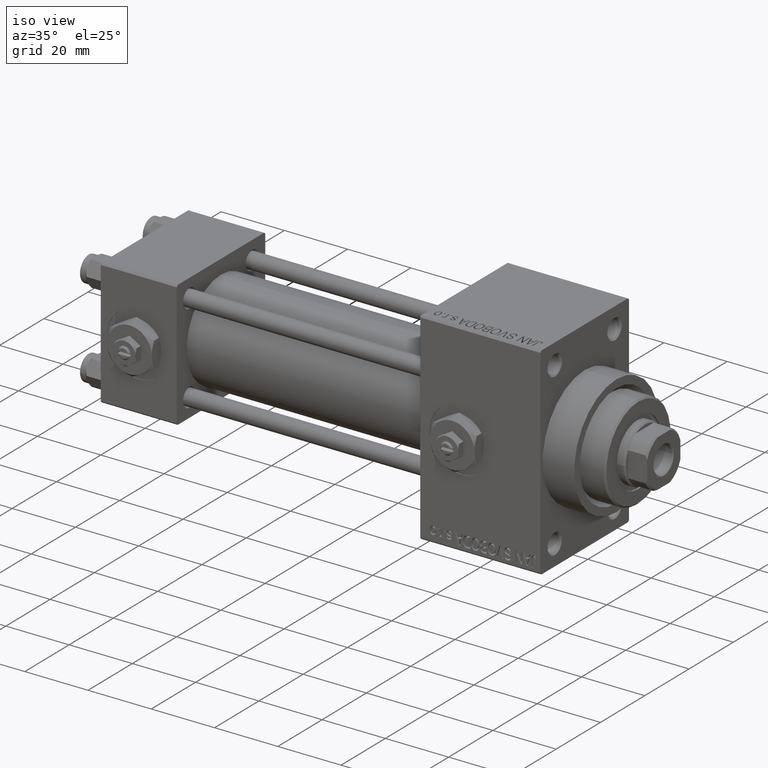
[diagram: clean part render]
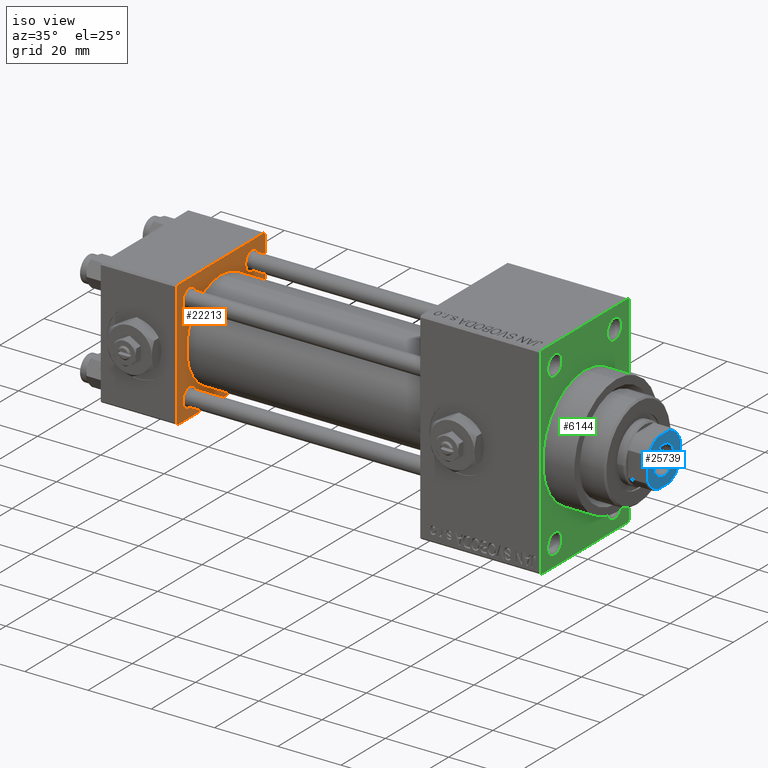
[diagram: same view with three faces highlighted in distinct colors, each labeled with its STEP entity id]
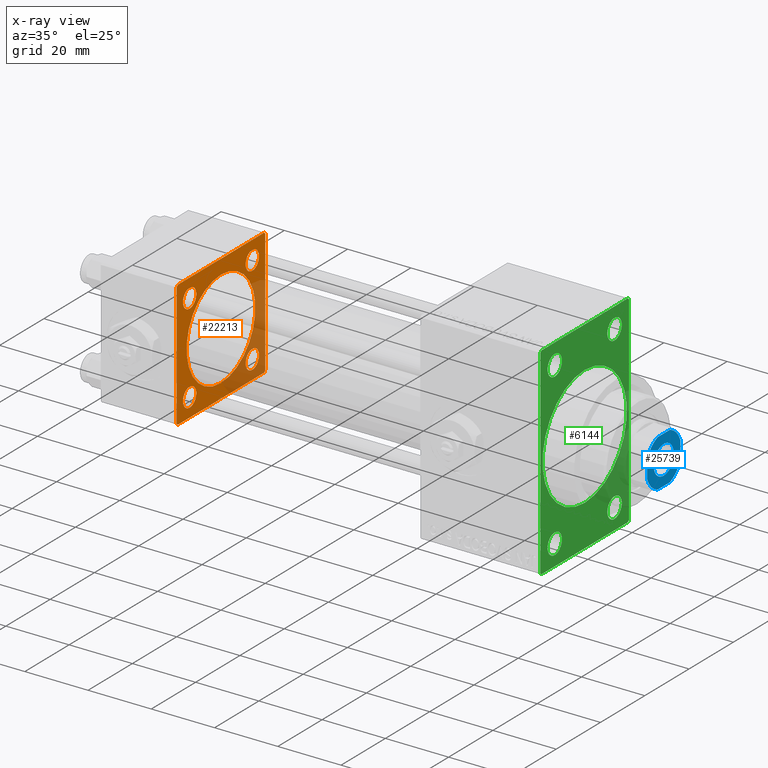
[diagram: x-ray of the same camera — body ghosted, the three highlighted faces saturated]
A machine part, iso view with three faces highlighted in distinct colors.
The next image is the same camera in x-ray (body ghosted, the three faces saturated) — at least one of them is partly hidden behind the body in this view.
Their STEP definitions:

[orange] entity #22213 — the highlighted planar face has unit normal (-1, 0, 0).
#208 = ORIENTED_EDGE ( 'NONE', *, *, #14749, .T. ) ;
#403 = ORIENTED_EDGE ( 'NONE', *, *, #12749, .T. ) ;
#414 = VECTOR ( 'NONE', #5601, 1000.000000000000000 ) ;
#1165 = VECTOR ( 'NONE', #41909, 1000.000000000000000 ) ;
#1203 = EDGE_CURVE ( 'NONE', #26590, #30342, #7630, .T. ) ;
#2475 = ORIENTED_EDGE ( 'NONE', *, *, #25808, .T. ) ;
#2793 = EDGE_LOOP ( 'NONE', ( #25057, #2811, #17392, #2475, #45039, #208, #7343, #4978 ) ) ;
#2811 = ORIENTED_EDGE ( 'NONE', *, *, #19152, .T. ) ;
#2814 = CIRCLE ( 'NONE', #4409, 2.999999999999990674 ) ;
#2873 = VERTEX_POINT ( 'NONE', #42936 ) ;
#2993 = EDGE_CURVE ( 'NONE', #2873, #21737, #48369, .T. ) ;
#3091 = CARTESIAN_POINT ( 'NONE',  ( 24.00000000000000000, -14.14999999999999503, 14.15000000000000391 ) ) ;
#3325 = ORIENTED_EDGE ( 'NONE', *, *, #26699, .T. ) ;
#3383 = DIRECTION ( 'NONE',  ( -0.000000000000000000, 0.000000000000000000, 1.000000000000000000 ) ) ;
#3393 = VECTOR ( 'NONE', #24546, 999.9999999999998863 ) ;
#3424 = CIRCLE ( 'NONE', #37420, 3.000000000000018208 ) ;
#3791 = ORIENTED_EDGE ( 'NONE', *, *, #5754, .F. ) ;
#3819 = ORIENTED_EDGE ( 'NONE', *, *, #4701, .T. ) ;
#4409 = AXIS2_PLACEMENT_3D ( 'NONE', #42950, #25063, #35245 ) ;
#4548 = DIRECTION ( 'NONE',  ( -1.000000000000000000, -0.000000000000000000, -0.000000000000000000 ) ) ;
#4642 = EDGE_CURVE ( 'NONE', #48187, #19458, #42603, .T. ) ;
#4701 = EDGE_CURVE ( 'NONE', #18779, #10367, #21981, .T. ) ;
#4978 = ORIENTED_EDGE ( 'NONE', *, *, #14148, .T. ) ;
#5227 = LINE ( 'NONE', #8212, #1165 ) ;
#5601 = DIRECTION ( 'NONE',  ( 0.000000000000000000, 0.000000000000000000, -1.000000000000000000 ) ) ;
#5754 = EDGE_CURVE ( 'NONE', #16055, #44828, #20434, .T. ) ;
#6781 = DIRECTION ( 'NONE',  ( 0.000000000000000000, 0.000000000000000000, 1.000000000000000000 ) ) ;
#6975 = CARTESIAN_POINT ( 'NONE',  ( 24.00000000000000000, 20.00000000000000000, 20.00000000000000000 ) ) ;
#7058 = VERTEX_POINT ( 'NONE', #15615 ) ;
#7172 = CARTESIAN_POINT ( 'NONE',  ( 24.00000000000000000, -19.50000000000000711, -20.00000000000000000 ) ) ;
#7343 = ORIENTED_EDGE ( 'NONE', *, *, #1203, .T. ) ;
#7463 = DIRECTION ( 'NONE',  ( 0.000000000000000000, -1.000000000000000000, -2.602085213965210149E-16 ) ) ;
#7550 = CARTESIAN_POINT ( 'NONE',  ( 24.00000000000000000, -14.14999999999999503, 17.15000000000002345 ) ) ;
#7630 = LINE ( 'NONE', #22712, #13991 ) ;
#7889 = EDGE_CURVE ( 'NONE', #10367, #18779, #2814, .T. ) ;
#8212 = CARTESIAN_POINT ( 'NONE',  ( 24.00000000000000000, 20.00000000000000000, -20.00000000000000711 ) ) ;
#8893 = EDGE_LOOP ( 'NONE', ( #25327, #3819 ) ) ;
#9316 = VECTOR ( 'NONE', #11062, 1000.000000000000114 ) ;
#9714 = CIRCLE ( 'NONE', #34997, 15.50000000000000000 ) ;
#9752 = CARTESIAN_POINT ( 'NONE',  ( 23.99999999999999289, -7.038826752868131828E-16, -15.50000000000000000 ) ) ;
#10367 = VERTEX_POINT ( 'NONE', #45521 ) ;
#11062 = DIRECTION ( 'NONE',  ( -0.000000000000000000, -0.7071067811865500152, -0.7071067811865451302 ) ) ;
#11253 = CARTESIAN_POINT ( 'NONE',  ( 24.00000000000000000, 20.00000000000000000, 19.49999999999999289 ) ) ;
#11545 = LINE ( 'NONE', #38018, #9316 ) ;
#12471 = VERTEX_POINT ( 'NONE', #15672 ) ;
#12545 = ORIENTED_EDGE ( 'NONE', *, *, #33748, .T. ) ;
#12654 = CARTESIAN_POINT ( 'NONE',  ( 24.00000000000000000, -14.14999999999999503, 11.14999999999998614 ) ) ;
#12749 = EDGE_CURVE ( 'NONE', #17936, #42137, #14769, .T. ) ;
#12753 = CARTESIAN_POINT ( 'NONE',  ( 24.00000000000000000, -14.14999999999999503, -14.15000000000000391 ) ) ;
#13602 = DIRECTION ( 'NONE',  ( 1.000000000000000000, 0.000000000000000000, 0.000000000000000000 ) ) ;
#13907 = DIRECTION ( 'NONE',  ( 0.000000000000000000, 0.000000000000000000, 1.000000000000000000 ) ) ;
#13991 = VECTOR ( 'NONE', #33377, 1000.000000000000000 ) ;
#14095 = AXIS2_PLACEMENT_3D ( 'NONE', #31543, #4548, #42710 ) ;
#14148 = EDGE_CURVE ( 'NONE', #30342, #31346, #26645, .T. ) ;
#14300 = DIRECTION ( 'NONE',  ( -1.000000000000000000, 0.000000000000000000, -0.000000000000000000 ) ) ;
#14393 = CIRCLE ( 'NONE', #24673, 2.999999999999990674 ) ;
#14749 = EDGE_CURVE ( 'NONE', #21737, #26590, #11545, .T. ) ;
#14769 = CIRCLE ( 'NONE', #21855, 3.000000000000018208 ) ;
#15188 = DIRECTION ( 'NONE',  ( -1.000000000000000000, -0.000000000000000000, -0.000000000000000000 ) ) ;
#15615 = CARTESIAN_POINT ( 'NONE',  ( 24.00000000000000000, 20.00000000000000000, -19.50000000000002132 ) ) ;
#15672 = CARTESIAN_POINT ( 'NONE',  ( 24.00000000000000000, 19.50000000000000711, -20.00000000000000711 ) ) ;
#15748 = CARTESIAN_POINT ( 'NONE',  ( 24.00000000000000000, -19.50000000000000711, -20.00000000000000000 ) ) ;
#15842 = CARTESIAN_POINT ( 'NONE',  ( 24.00000000000000000, 14.14999999999999858, -17.14999999999999147 ) ) ;
#16055 = VERTEX_POINT ( 'NONE', #9752 ) ;
#16935 = DIRECTION ( 'NONE',  ( -1.000000000000000000, -0.000000000000000000, -0.000000000000000000 ) ) ;
#17306 = DIRECTION ( 'NONE',  ( 0.000000000000000000, 0.000000000000000000, 1.000000000000000000 ) ) ;
#17392 = ORIENTED_EDGE ( 'NONE', *, *, #31541, .F. ) ;
#17936 = VERTEX_POINT ( 'NONE', #7550 ) ;
#18009 = FACE_OUTER_BOUND ( 'NONE', #2793, .T. ) ;
#18074 = AXIS2_PLACEMENT_3D ( 'NONE', #18136, #33244, #48396 ) ;
#18136 = CARTESIAN_POINT ( 'NONE',  ( 23.99999999999999289, -2.602085213965210642E-15, 0.000000000000000000 ) ) ;
#18190 = DIRECTION ( 'NONE',  ( -1.000000000000000000, -0.000000000000000000, -0.000000000000000000 ) ) ;
#18779 = VERTEX_POINT ( 'NONE', #37747 ) ;
#18814 = LINE ( 'NONE', #26243, #48507 ) ;
#19152 = EDGE_CURVE ( 'NONE', #12471, #7058, #18814, .T. ) ;
#19242 = CIRCLE ( 'NONE', #46161, 2.999999999999990674 ) ;
#19448 = DIRECTION ( 'NONE',  ( 0.000000000000000000, 0.7071067811865401342, -0.7071067811865549002 ) ) ;
#19458 = VERTEX_POINT ( 'NONE', #22465 ) ;
#19873 = EDGE_CURVE ( 'NONE', #42973, #31454, #19242, .T. ) ;
#20434 = CIRCLE ( 'NONE', #18074, 15.50000000000000000 ) ;
#20577 = LINE ( 'NONE', #43879, #3393 ) ;
#21035 = EDGE_LOOP ( 'NONE', ( #24649, #3791 ) ) ;
#21325 = CARTESIAN_POINT ( 'NONE',  ( 24.00000000000000000, 14.14999999999999858, -14.15000000000000036 ) ) ;
#21737 = VERTEX_POINT ( 'NONE', #47573 ) ;
#21855 = AXIS2_PLACEMENT_3D ( 'NONE', #31453, #35165, #23028 ) ;
#21981 = CIRCLE ( 'NONE', #28331, 2.999999999999990674 ) ;
#22071 = ORIENTED_EDGE ( 'NONE', *, *, #4642, .T. ) ;
#22213 = ADVANCED_FACE ( 'NONE', ( #45022, #29634, #33349, #36819, #48999, #18009 ), #41289, .F. ) ;
#22465 = CARTESIAN_POINT ( 'NONE',  ( 24.00000000000000000, -14.14999999999999503, -17.15000000000002345 ) ) ;
#22712 = CARTESIAN_POINT ( 'NONE',  ( 24.00000000000000000, -20.00000000000000355, 19.99999999999998934 ) ) ;
#23014 = CARTESIAN_POINT ( 'NONE',  ( 24.00000000000000000, -14.14999999999999503, -11.14999999999998614 ) ) ;
#23028 = DIRECTION ( 'NONE',  ( 0.000000000000000000, 0.000000000000000000, 1.000000000000000000 ) ) ;
#23459 = AXIS2_PLACEMENT_3D ( 'NONE', #3091, #18190, #33297 ) ;
#23698 = EDGE_CURVE ( 'NONE', #31454, #42973, #14393, .T. ) ;
#23853 = ORIENTED_EDGE ( 'NONE', *, *, #19873, .T. ) ;
#24546 = DIRECTION ( 'NONE',  ( 0.000000000000000000, -0.7071067811865425767, 0.7071067811865525687 ) ) ;
#24649 = ORIENTED_EDGE ( 'NONE', *, *, #24954, .F. ) ;
#24673 = AXIS2_PLACEMENT_3D ( 'NONE', #40713, #15188, #6781 ) ;
#24701 = VERTEX_POINT ( 'NONE', #11253 ) ;
#24954 = EDGE_CURVE ( 'NONE', #44828, #16055, #9714, .T. ) ;
#25057 = ORIENTED_EDGE ( 'NONE', *, *, #29671, .F. ) ;
#25063 = DIRECTION ( 'NONE',  ( -1.000000000000000000, -0.000000000000000000, -0.000000000000000000 ) ) ;
#25327 = ORIENTED_EDGE ( 'NONE', *, *, #7889, .T. ) ;
#25555 = EDGE_LOOP ( 'NONE', ( #12545, #403 ) ) ;
#25808 = EDGE_CURVE ( 'NONE', #24701, #2873, #20577, .T. ) ;
#26243 = CARTESIAN_POINT ( 'NONE',  ( 24.00000000000000000, 20.00000000000000000, -19.50000000000002132 ) ) ;
#26590 = VERTEX_POINT ( 'NONE', #42232 ) ;
#26645 = LINE ( 'NONE', #15748, #32966 ) ;
#26699 = EDGE_CURVE ( 'NONE', #19458, #48187, #3424, .T. ) ;
#28118 = CARTESIAN_POINT ( 'NONE',  ( 24.00000000000000000, 20.00000000000000000, 20.00000000000000000 ) ) ;
#28331 = AXIS2_PLACEMENT_3D ( 'NONE', #47410, #40187, #43200 ) ;
#29068 = VECTOR ( 'NONE', #7463, 1000.000000000000000 ) ;
#29634 = FACE_BOUND ( 'NONE', #35367, .T. ) ;
#29671 = EDGE_CURVE ( 'NONE', #12471, #31346, #5227, .T. ) ;
#29935 = CARTESIAN_POINT ( 'NONE',  ( 23.99999999999999289, -2.602085213965210642E-15, 15.50000000000000000 ) ) ;
#30342 = VERTEX_POINT ( 'NONE', #41706 ) ;
#31346 = VERTEX_POINT ( 'NONE', #7172 ) ;
#31453 = CARTESIAN_POINT ( 'NONE',  ( 24.00000000000000000, -14.14999999999999503, 14.15000000000000391 ) ) ;
#31454 = VERTEX_POINT ( 'NONE', #46051 ) ;
#31541 = EDGE_CURVE ( 'NONE', #24701, #7058, #32810, .T. ) ;
#31543 = CARTESIAN_POINT ( 'NONE',  ( 24.00000000000000000, -14.14999999999999503, -14.15000000000000391 ) ) ;
#32810 = LINE ( 'NONE', #28118, #414 ) ;
#32966 = VECTOR ( 'NONE', #19448, 1000.000000000000000 ) ;
#33244 = DIRECTION ( 'NONE',  ( 1.000000000000000000, 0.000000000000000000, 0.000000000000000000 ) ) ;
#33297 = DIRECTION ( 'NONE',  ( 0.000000000000000000, 0.000000000000000000, 1.000000000000000000 ) ) ;
#33349 = FACE_BOUND ( 'NONE', #25555, .T. ) ;
#33377 = DIRECTION ( 'NONE',  ( 0.000000000000000000, 8.673617379884036705E-17, -1.000000000000000000 ) ) ;
#33465 = ORIENTED_EDGE ( 'NONE', *, *, #23698, .T. ) ;
#33748 = EDGE_CURVE ( 'NONE', #42137, #17936, #40055, .T. ) ;
#33930 = DIRECTION ( 'NONE',  ( -0.000000000000000000, 0.7071067811865524577, 0.7071067811865426878 ) ) ;
#34997 = AXIS2_PLACEMENT_3D ( 'NONE', #36132, #13602, #17306 ) ;
#35165 = DIRECTION ( 'NONE',  ( -1.000000000000000000, -0.000000000000000000, -0.000000000000000000 ) ) ;
#35245 = DIRECTION ( 'NONE',  ( 0.000000000000000000, 0.000000000000000000, 1.000000000000000000 ) ) ;
#35367 = EDGE_LOOP ( 'NONE', ( #23853, #33465 ) ) ;
#36132 = CARTESIAN_POINT ( 'NONE',  ( 23.99999999999999289, -2.602085213965210642E-15, 0.000000000000000000 ) ) ;
#36433 = DIRECTION ( 'NONE',  ( -1.000000000000000000, -0.000000000000000000, -0.000000000000000000 ) ) ;
#36819 = FACE_BOUND ( 'NONE', #8893, .T. ) ;
#37299 = CARTESIAN_POINT ( 'NONE',  ( 24.00000000000000000, 0.000000000000000000, 0.000000000000000000 ) ) ;
#37420 = AXIS2_PLACEMENT_3D ( 'NONE', #12753, #16935, #42739 ) ;
#37747 = CARTESIAN_POINT ( 'NONE',  ( 24.00000000000000000, 14.14999999999999858, 17.14999999999999147 ) ) ;
#38018 = CARTESIAN_POINT ( 'NONE',  ( 24.00000000000000000, -20.00000000000000355, 19.49999999999998224 ) ) ;
#38298 = AXIS2_PLACEMENT_3D ( 'NONE', #37299, #14300, #3383 ) ;
#39565 = EDGE_LOOP ( 'NONE', ( #3325, #22071 ) ) ;
#40055 = CIRCLE ( 'NONE', #23459, 3.000000000000018208 ) ;
#40187 = DIRECTION ( 'NONE',  ( -1.000000000000000000, -0.000000000000000000, -0.000000000000000000 ) ) ;
#40713 = CARTESIAN_POINT ( 'NONE',  ( 24.00000000000000000, 14.14999999999999858, -14.15000000000000036 ) ) ;
#41289 = PLANE ( 'NONE',  #38298 ) ;
#41706 = CARTESIAN_POINT ( 'NONE',  ( 24.00000000000000000, -20.00000000000000000, -19.49999999999999645 ) ) ;
#41909 = DIRECTION ( 'NONE',  ( 0.000000000000000000, -1.000000000000000000, 1.734723475976807094E-16 ) ) ;
#42137 = VERTEX_POINT ( 'NONE', #12654 ) ;
#42232 = CARTESIAN_POINT ( 'NONE',  ( 24.00000000000000000, -20.00000000000000355, 19.49999999999998224 ) ) ;
#42603 = CIRCLE ( 'NONE', #14095, 3.000000000000018208 ) ;
#42710 = DIRECTION ( 'NONE',  ( 0.000000000000000000, 0.000000000000000000, 1.000000000000000000 ) ) ;
#42739 = DIRECTION ( 'NONE',  ( 0.000000000000000000, 0.000000000000000000, 1.000000000000000000 ) ) ;
#42936 = CARTESIAN_POINT ( 'NONE',  ( 24.00000000000000000, 19.50000000000000000, 20.00000000000000000 ) ) ;
#42950 = CARTESIAN_POINT ( 'NONE',  ( 24.00000000000000000, 14.14999999999999858, 14.15000000000000036 ) ) ;
#42973 = VERTEX_POINT ( 'NONE', #15842 ) ;
#43200 = DIRECTION ( 'NONE',  ( 0.000000000000000000, 0.000000000000000000, 1.000000000000000000 ) ) ;
#43879 = CARTESIAN_POINT ( 'NONE',  ( 24.00000000000000000, 19.50000000000000000, 20.00000000000000000 ) ) ;
#44828 = VERTEX_POINT ( 'NONE', #29935 ) ;
#45022 = FACE_BOUND ( 'NONE', #39565, .T. ) ;
#45039 = ORIENTED_EDGE ( 'NONE', *, *, #2993, .T. ) ;
#45521 = CARTESIAN_POINT ( 'NONE',  ( 24.00000000000000000, 14.14999999999999858, 11.15000000000001279 ) ) ;
#46051 = CARTESIAN_POINT ( 'NONE',  ( 24.00000000000000000, 14.14999999999999858, -11.15000000000001279 ) ) ;
#46161 = AXIS2_PLACEMENT_3D ( 'NONE', #21325, #36433, #13907 ) ;
#47410 = CARTESIAN_POINT ( 'NONE',  ( 24.00000000000000000, 14.14999999999999858, 14.15000000000000036 ) ) ;
#47573 = CARTESIAN_POINT ( 'NONE',  ( 24.00000000000000000, -19.49999999999999289, 19.99999999999998934 ) ) ;
#48187 = VERTEX_POINT ( 'NONE', #23014 ) ;
#48369 = LINE ( 'NONE', #6975, #29068 ) ;
#48396 = DIRECTION ( 'NONE',  ( 0.000000000000000000, 0.000000000000000000, 1.000000000000000000 ) ) ;
#48507 = VECTOR ( 'NONE', #33930, 1000.000000000000000 ) ;
#48999 = FACE_BOUND ( 'NONE', #21035, .T. ) ;

[blue] entity #25739 — the highlighted planar face has unit normal (1, 0, 0).
#239 = AXIS2_PLACEMENT_3D ( 'NONE', #10549, #14496, #25873 ) ;
#427 = CARTESIAN_POINT ( 'NONE',  ( 0.000000000000000000, 0.000000000000000000, 140.0000000000000000 ) ) ;
#841 = CARTESIAN_POINT ( 'NONE',  ( 0.000000000000000000, 0.000000000000000000, 140.0000000000000000 ) ) ;
#1003 = CARTESIAN_POINT ( 'NONE',  ( 0.000000000000000000, 0.000000000000000000, 140.0000000000000000 ) ) ;
#1164 = DIRECTION ( 'NONE',  ( -0.000000000000000000, 0.000000000000000000, 1.000000000000000000 ) ) ;
#1196 = AXIS2_PLACEMENT_3D ( 'NONE', #1003, #4731, #45628 ) ;
#1376 = CARTESIAN_POINT ( 'NONE',  ( 7.500000000000000888, -2.783882181415012980, 140.0000000000000000 ) ) ;
#2940 = CARTESIAN_POINT ( 'NONE',  ( -7.500000000000000000, 7.499999999999998224, 140.0000000000000000 ) ) ;
#3623 = EDGE_LOOP ( 'NONE', ( #36331, #32023 ) ) ;
#4731 = DIRECTION ( 'NONE',  ( 0.000000000000000000, -0.000000000000000000, -1.000000000000000000 ) ) ;
#4982 = CIRCLE ( 'NONE', #24729, 8.000000000000030198 ) ;
#5207 = VERTEX_POINT ( 'NONE', #47044 ) ;
#5527 = VERTEX_POINT ( 'NONE', #8530 ) ;
#5917 = LINE ( 'NONE', #32170, #37699 ) ;
#6085 = CIRCLE ( 'NONE', #39310, 8.000000000000001776 ) ;
#6377 = ORIENTED_EDGE ( 'NONE', *, *, #38613, .T. ) ;
#6412 = EDGE_CURVE ( 'NONE', #18614, #17088, #7152, .T. ) ;
#7152 = LINE ( 'NONE', #2940, #27646 ) ;
#7644 = CARTESIAN_POINT ( 'NONE',  ( 7.500000000000000000, 7.500000000000000000, 140.0000000000000000 ) ) ;
#7994 = VECTOR ( 'NONE', #41455, 1000.000000000000000 ) ;
#8530 = CARTESIAN_POINT ( 'NONE',  ( -7.499999999999999112, 2.783882181415099577, 140.0000000000000000 ) ) ;
#9588 = VERTEX_POINT ( 'NONE', #43457 ) ;
#9981 = CIRCLE ( 'NONE', #32123, 4.549999999999998934 ) ;
#10549 = CARTESIAN_POINT ( 'NONE',  ( 0.000000000000000000, 0.000000000000000000, 140.0000000000000000 ) ) ;
#11357 = EDGE_CURVE ( 'NONE', #45139, #5207, #9981, .T. ) ;
#11480 = LINE ( 'NONE', #38191, #7994 ) ;
#11596 = DIRECTION ( 'NONE',  ( 1.000000000000000000, 0.000000000000000000, 0.000000000000000000 ) ) ;
#12975 = CARTESIAN_POINT ( 'NONE',  ( 0.000000000000000000, 0.000000000000000000, 140.0000000000000000 ) ) ;
#13226 = DIRECTION ( 'NONE',  ( -0.000000000000000000, 0.000000000000000000, 1.000000000000000000 ) ) ;
#13778 = DIRECTION ( 'NONE',  ( 1.000000000000000000, 0.000000000000000000, 0.000000000000000000 ) ) ;
#14208 = CARTESIAN_POINT ( 'NONE',  ( -7.499999999999997335, -2.783882181415101353, 140.0000000000000000 ) ) ;
#14496 = DIRECTION ( 'NONE',  ( -0.000000000000000000, 0.000000000000000000, 1.000000000000000000 ) ) ;
#14576 = EDGE_CURVE ( 'NONE', #15735, #40541, #45800, .T. ) ;
#14812 = CARTESIAN_POINT ( 'NONE',  ( -2.783882181415096024, -7.500000000000000000, 140.0000000000000000 ) ) ;
#15735 = VERTEX_POINT ( 'NONE', #1376 ) ;
#15949 = ORIENTED_EDGE ( 'NONE', *, *, #31803, .T. ) ;
#17088 = VERTEX_POINT ( 'NONE', #26754 ) ;
#18031 = CARTESIAN_POINT ( 'NONE',  ( 0.000000000000000000, 0.000000000000000000, 140.0000000000000000 ) ) ;
#18614 = VERTEX_POINT ( 'NONE', #27452 ) ;
#19373 = EDGE_CURVE ( 'NONE', #17088, #5527, #4982, .T. ) ;
#19560 = VECTOR ( 'NONE', #37581, 1000.000000000000000 ) ;
#21912 = FACE_OUTER_BOUND ( 'NONE', #32287, .T. ) ;
#23316 = CIRCLE ( 'NONE', #1196, 4.549999999999998934 ) ;
#23620 = DIRECTION ( 'NONE',  ( 1.000000000000000000, 0.000000000000000000, 0.000000000000000000 ) ) ;
#23957 = ORIENTED_EDGE ( 'NONE', *, *, #47767, .T. ) ;
#24729 = AXIS2_PLACEMENT_3D ( 'NONE', #18031, #29912, #29181 ) ;
#25739 = ADVANCED_FACE ( 'NONE', ( #29353, #21912 ), #44482, .T. ) ;
#25873 = DIRECTION ( 'NONE',  ( 1.000000000000000000, 0.000000000000000000, 0.000000000000000000 ) ) ;
#26754 = CARTESIAN_POINT ( 'NONE',  ( -2.783882181415099133, 7.499999999999999112, 140.0000000000000000 ) ) ;
#26898 = VERTEX_POINT ( 'NONE', #14208 ) ;
#27310 = EDGE_CURVE ( 'NONE', #40541, #18614, #27956, .T. ) ;
#27452 = CARTESIAN_POINT ( 'NONE',  ( 2.783882181415016532, 7.499999999999999112, 140.0000000000000000 ) ) ;
#27646 = VECTOR ( 'NONE', #33882, 1000.000000000000000 ) ;
#27956 = CIRCLE ( 'NONE', #33477, 8.000000000000001776 ) ;
#28139 = AXIS2_PLACEMENT_3D ( 'NONE', #12975, #13226, #28312 ) ;
#28143 = DIRECTION ( 'NONE',  ( 0.000000000000000000, -0.000000000000000000, -1.000000000000000000 ) ) ;
#28312 = DIRECTION ( 'NONE',  ( 1.000000000000000000, 0.000000000000000000, 0.000000000000000000 ) ) ;
#29181 = DIRECTION ( 'NONE',  ( 1.000000000000000000, 0.000000000000000000, 0.000000000000000000 ) ) ;
#29353 = FACE_BOUND ( 'NONE', #3623, .T. ) ;
#29879 = CARTESIAN_POINT ( 'NONE',  ( -4.549999999999998934, 5.572142936120455355E-16, 140.0000000000000000 ) ) ;
#29912 = DIRECTION ( 'NONE',  ( -0.000000000000000000, 0.000000000000000000, 1.000000000000000000 ) ) ;
#31125 = EDGE_CURVE ( 'NONE', #5207, #45139, #23316, .T. ) ;
#31803 = EDGE_CURVE ( 'NONE', #26898, #35800, #34465, .T. ) ;
#32023 = ORIENTED_EDGE ( 'NONE', *, *, #11357, .T. ) ;
#32123 = AXIS2_PLACEMENT_3D ( 'NONE', #40020, #28143, #13778 ) ;
#32170 = CARTESIAN_POINT ( 'NONE',  ( -7.500000000000000000, 7.499999999999998224, 140.0000000000000000 ) ) ;
#32287 = EDGE_LOOP ( 'NONE', ( #42595, #42648, #44821, #39253, #6377, #15949, #23957, #37614 ) ) ;
#33477 = AXIS2_PLACEMENT_3D ( 'NONE', #427, #1164, #11596 ) ;
#33882 = DIRECTION ( 'NONE',  ( -1.000000000000000000, -1.156482317317871478E-16, -0.000000000000000000 ) ) ;
#34465 = CIRCLE ( 'NONE', #28139, 8.000000000000030198 ) ;
#35800 = VERTEX_POINT ( 'NONE', #14812 ) ;
#36331 = ORIENTED_EDGE ( 'NONE', *, *, #31125, .T. ) ;
#37581 = DIRECTION ( 'NONE',  ( -1.156482317317871478E-16, 1.000000000000000000, -0.000000000000000000 ) ) ;
#37614 = ORIENTED_EDGE ( 'NONE', *, *, #37944, .T. ) ;
#37699 = VECTOR ( 'NONE', #46823, 1000.000000000000000 ) ;
#37944 = EDGE_CURVE ( 'NONE', #9588, #15735, #6085, .T. ) ;
#38191 = CARTESIAN_POINT ( 'NONE',  ( -7.499999999999998224, -7.500000000000000000, 140.0000000000000000 ) ) ;
#38240 = CARTESIAN_POINT ( 'NONE',  ( 7.500000000000000888, 2.783882181415014312, 140.0000000000000000 ) ) ;
#38478 = DIRECTION ( 'NONE',  ( -0.000000000000000000, 0.000000000000000000, 1.000000000000000000 ) ) ;
#38613 = EDGE_CURVE ( 'NONE', #5527, #26898, #5917, .T. ) ;
#39253 = ORIENTED_EDGE ( 'NONE', *, *, #19373, .T. ) ;
#39310 = AXIS2_PLACEMENT_3D ( 'NONE', #841, #38478, #23620 ) ;
#40020 = CARTESIAN_POINT ( 'NONE',  ( 0.000000000000000000, 0.000000000000000000, 140.0000000000000000 ) ) ;
#40541 = VERTEX_POINT ( 'NONE', #38240 ) ;
#41455 = DIRECTION ( 'NONE',  ( 1.000000000000000000, 0.000000000000000000, 0.000000000000000000 ) ) ;
#42595 = ORIENTED_EDGE ( 'NONE', *, *, #14576, .T. ) ;
#42648 = ORIENTED_EDGE ( 'NONE', *, *, #27310, .T. ) ;
#43457 = CARTESIAN_POINT ( 'NONE',  ( 2.783882181415015644, -7.500000000000000000, 140.0000000000000000 ) ) ;
#44482 = PLANE ( 'NONE',  #239 ) ;
#44821 = ORIENTED_EDGE ( 'NONE', *, *, #6412, .T. ) ;
#45139 = VERTEX_POINT ( 'NONE', #29879 ) ;
#45628 = DIRECTION ( 'NONE',  ( 1.000000000000000000, 0.000000000000000000, 0.000000000000000000 ) ) ;
#45800 = LINE ( 'NONE', #7644, #19560 ) ;
#46823 = DIRECTION ( 'NONE',  ( 1.156482317317871725E-16, -1.000000000000000000, 0.000000000000000000 ) ) ;
#47044 = CARTESIAN_POINT ( 'NONE',  ( 4.549999999999998934, 0.000000000000000000, 140.0000000000000000 ) ) ;
#47767 = EDGE_CURVE ( 'NONE', #35800, #9588, #11480, .T. ) ;

[green] entity #6144 — the highlighted planar face has unit normal (-1, 0, 0).
#518 = CIRCLE ( 'NONE', #11603, 3.249999999999988898 ) ;
#973 = EDGE_CURVE ( 'NONE', #27979, #5011, #21001, .T. ) ;
#1260 = CARTESIAN_POINT ( 'NONE',  ( 139.0000000000000000, -13.50000000000000533, -25.49999999999999645 ) ) ;
#1298 = CIRCLE ( 'NONE', #7636, 3.249999999999988898 ) ;
#1410 = AXIS2_PLACEMENT_3D ( 'NONE', #30336, #18943, #22896 ) ;
#1577 = VERTEX_POINT ( 'NONE', #16938 ) ;
#1584 = ORIENTED_EDGE ( 'NONE', *, *, #23900, .T. ) ;
#1919 = FACE_BOUND ( 'NONE', #37811, .T. ) ;
#2009 = VERTEX_POINT ( 'NONE', #12326 ) ;
#2132 = CARTESIAN_POINT ( 'NONE',  ( 139.0000000000000000, -13.50000000000000178, 25.50000000000000355 ) ) ;
#2160 = FACE_BOUND ( 'NONE', #27640, .T. ) ;
#2226 = EDGE_CURVE ( 'NONE', #34638, #10309, #6116, .T. ) ;
#2395 = DIRECTION ( 'NONE',  ( 0.000000000000000000, 0.7071067811865524577, -0.7071067811865426878 ) ) ;
#2575 = AXIS2_PLACEMENT_3D ( 'NONE', #38963, #24354, #20380 ) ;
#2797 = VECTOR ( 'NONE', #46979, 1000.000000000000114 ) ;
#3056 = CARTESIAN_POINT ( 'NONE',  ( 139.0000000000000000, 19.50000000000000000, -32.00000000000000000 ) ) ;
#3920 = CARTESIAN_POINT ( 'NONE',  ( 139.0000000000000000, 13.49999999999999822, 22.25000000000001776 ) ) ;
#3929 = AXIS2_PLACEMENT_3D ( 'NONE', #28647, #40530, #36802 ) ;
#4211 = LINE ( 'NONE', #7946, #28161 ) ;
#4442 = CARTESIAN_POINT ( 'NONE',  ( 139.0000000000000000, -13.50000000000000178, 25.50000000000000355 ) ) ;
#4703 = CARTESIAN_POINT ( 'NONE',  ( 139.0000000000000000, 13.49999999999999822, 25.50000000000000355 ) ) ;
#5011 = VERTEX_POINT ( 'NONE', #45085 ) ;
#5864 = EDGE_CURVE ( 'NONE', #27625, #44761, #48200, .T. ) ;
#6116 = LINE ( 'NONE', #33325, #35335 ) ;
#6144 = ADVANCED_FACE ( 'NONE', ( #2160, #1919, #10340, #43547, #17265, #25414 ), #9617, .F. ) ;
#6343 = CARTESIAN_POINT ( 'NONE',  ( 139.0000000000000000, -19.50000000000000000, 31.99999999999999289 ) ) ;
#6447 = CARTESIAN_POINT ( 'NONE',  ( 139.0000000000000000, -13.50000000000000178, 22.24999999999997158 ) ) ;
#7636 = AXIS2_PLACEMENT_3D ( 'NONE', #39706, #36470, #25079 ) ;
#7905 = ORIENTED_EDGE ( 'NONE', *, *, #43907, .T. ) ;
#7946 = CARTESIAN_POINT ( 'NONE',  ( 139.0000000000000000, 20.00000000000000000, 32.00000000000000000 ) ) ;
#8667 = DIRECTION ( 'NONE',  ( -1.000000000000000000, -0.000000000000000000, -0.000000000000000000 ) ) ;
#8797 = DIRECTION ( 'NONE',  ( -0.000000000000000000, -0.7071067811865474617, -0.7071067811865474617 ) ) ;
#9333 = LINE ( 'NONE', #31841, #2797 ) ;
#9349 = DIRECTION ( 'NONE',  ( 0.000000000000000000, 0.000000000000000000, 1.000000000000000000 ) ) ;
#9570 = DIRECTION ( 'NONE',  ( -1.000000000000000000, -0.000000000000000000, -0.000000000000000000 ) ) ;
#9617 = PLANE ( 'NONE',  #3929 ) ;
#9619 = EDGE_CURVE ( 'NONE', #47571, #21867, #1298, .T. ) ;
#9827 = AXIS2_PLACEMENT_3D ( 'NONE', #26786, #41919, #19343 ) ;
#10132 = CARTESIAN_POINT ( 'NONE',  ( 139.0000000000000000, -20.00000000000000000, -31.50000000000000711 ) ) ;
#10309 = VERTEX_POINT ( 'NONE', #37312 ) ;
#10340 = FACE_BOUND ( 'NONE', #13935, .T. ) ;
#10952 = EDGE_CURVE ( 'NONE', #18341, #34384, #26635, .T. ) ;
#11072 = VECTOR ( 'NONE', #36376, 1000.000000000000000 ) ;
#11293 = ORIENTED_EDGE ( 'NONE', *, *, #36218, .T. ) ;
#11603 = AXIS2_PLACEMENT_3D ( 'NONE', #32817, #31846, #47476 ) ;
#12010 = EDGE_CURVE ( 'NONE', #16253, #39624, #4211, .T. ) ;
#12059 = CIRCLE ( 'NONE', #2575, 19.00000000000000000 ) ;
#12326 = CARTESIAN_POINT ( 'NONE',  ( 139.0000000000000000, 2.326828918379970970E-15, -19.00000000000000000 ) ) ;
#12677 = DIRECTION ( 'NONE',  ( 0.000000000000000000, 0.000000000000000000, 1.000000000000000000 ) ) ;
#13131 = CARTESIAN_POINT ( 'NONE',  ( 139.0000000000000000, 20.00000000000000000, -31.50000000000000000 ) ) ;
#13539 = ORIENTED_EDGE ( 'NONE', *, *, #9619, .T. ) ;
#13873 = CARTESIAN_POINT ( 'NONE',  ( 139.0000000000000000, 20.00000000000000000, 31.50000000000000000 ) ) ;
#13935 = EDGE_LOOP ( 'NONE', ( #13539, #47095 ) ) ;
#14074 = AXIS2_PLACEMENT_3D ( 'NONE', #39752, #9570, #20179 ) ;
#15700 = EDGE_CURVE ( 'NONE', #21867, #47571, #41752, .T. ) ;
#15723 = CARTESIAN_POINT ( 'NONE',  ( 139.0000000000000000, -13.50000000000000533, -28.74999999999998224 ) ) ;
#15833 = DIRECTION ( 'NONE',  ( 0.000000000000000000, 0.000000000000000000, 1.000000000000000000 ) ) ;
#16253 = VERTEX_POINT ( 'NONE', #13873 ) ;
#16938 = CARTESIAN_POINT ( 'NONE',  ( 139.0000000000000000, -20.00000000000000000, 31.49999999999999289 ) ) ;
#17265 = FACE_BOUND ( 'NONE', #38832, .T. ) ;
#17330 = EDGE_CURVE ( 'NONE', #2009, #35852, #12059, .T. ) ;
#17827 = AXIS2_PLACEMENT_3D ( 'NONE', #4703, #18273, #47550 ) ;
#17838 = AXIS2_PLACEMENT_3D ( 'NONE', #4442, #8667, #15833 ) ;
#17881 = VECTOR ( 'NONE', #8797, 1000.000000000000114 ) ;
#18273 = DIRECTION ( 'NONE',  ( -1.000000000000000000, -0.000000000000000000, -0.000000000000000000 ) ) ;
#18341 = VERTEX_POINT ( 'NONE', #38666 ) ;
#18943 = DIRECTION ( 'NONE',  ( -1.000000000000000000, -0.000000000000000000, -0.000000000000000000 ) ) ;
#18987 = EDGE_LOOP ( 'NONE', ( #29222, #48075, #36464, #7905, #33035, #39746, #1584, #11293 ) ) ;
#19343 = DIRECTION ( 'NONE',  ( 0.000000000000000000, 0.000000000000000000, -1.000000000000000000 ) ) ;
#19377 = DIRECTION ( 'NONE',  ( 0.000000000000000000, -1.000000000000000000, -1.734723475976807094E-16 ) ) ;
#20148 = CARTESIAN_POINT ( 'NONE',  ( 139.0000000000000000, -20.00000000000000000, 31.49999999999999289 ) ) ;
#20179 = DIRECTION ( 'NONE',  ( 0.000000000000000000, 0.000000000000000000, 1.000000000000000000 ) ) ;
#20377 = ORIENTED_EDGE ( 'NONE', *, *, #36721, .T. ) ;
#20380 = DIRECTION ( 'NONE',  ( 0.000000000000000000, 0.000000000000000000, -1.000000000000000000 ) ) ;
#20772 = LINE ( 'NONE', #25465, #11072 ) ;
#21001 = CIRCLE ( 'NONE', #17827, 3.249999999999988898 ) ;
#21867 = VERTEX_POINT ( 'NONE', #41590 ) ;
#22721 = EDGE_CURVE ( 'NONE', #1577, #34638, #29859, .T. ) ;
#22750 = CIRCLE ( 'NONE', #1410, 3.249999999999988898 ) ;
#22896 = DIRECTION ( 'NONE',  ( 0.000000000000000000, 0.000000000000000000, 1.000000000000000000 ) ) ;
#23209 = CIRCLE ( 'NONE', #9827, 19.00000000000000000 ) ;
#23889 = VECTOR ( 'NONE', #19377, 1000.000000000000000 ) ;
#23900 = EDGE_CURVE ( 'NONE', #26085, #45632, #38195, .T. ) ;
#24354 = DIRECTION ( 'NONE',  ( 1.000000000000000000, 0.000000000000000000, 0.000000000000000000 ) ) ;
#24750 = CARTESIAN_POINT ( 'NONE',  ( 139.0000000000000000, -13.50000000000000533, -22.25000000000000711 ) ) ;
#25079 = DIRECTION ( 'NONE',  ( 0.000000000000000000, 0.000000000000000000, 1.000000000000000000 ) ) ;
#25319 = ORIENTED_EDGE ( 'NONE', *, *, #10952, .T. ) ;
#25414 = FACE_OUTER_BOUND ( 'NONE', #18987, .T. ) ;
#25465 = CARTESIAN_POINT ( 'NONE',  ( 139.0000000000000000, 20.00000000000000000, -32.00000000000000000 ) ) ;
#25514 = CIRCLE ( 'NONE', #36608, 3.250000000000030642 ) ;
#25569 = EDGE_CURVE ( 'NONE', #34384, #18341, #25514, .T. ) ;
#25673 = ORIENTED_EDGE ( 'NONE', *, *, #40489, .T. ) ;
#25704 = CARTESIAN_POINT ( 'NONE',  ( 139.0000000000000000, 13.49999999999999822, -28.74999999999998579 ) ) ;
#26085 = VERTEX_POINT ( 'NONE', #30702 ) ;
#26635 = CIRCLE ( 'NONE', #17838, 3.250000000000030642 ) ;
#26786 = CARTESIAN_POINT ( 'NONE',  ( 139.0000000000000000, 0.000000000000000000, 0.000000000000000000 ) ) ;
#27082 = CARTESIAN_POINT ( 'NONE',  ( 139.0000000000000000, 20.00000000000000000, -31.50000000000000000 ) ) ;
#27625 = VERTEX_POINT ( 'NONE', #15723 ) ;
#27640 = EDGE_LOOP ( 'NONE', ( #47346, #25319 ) ) ;
#27862 = EDGE_CURVE ( 'NONE', #35852, #2009, #23209, .T. ) ;
#27979 = VERTEX_POINT ( 'NONE', #3920 ) ;
#28161 = VECTOR ( 'NONE', #34419, 1000.000000000000000 ) ;
#28222 = LINE ( 'NONE', #13131, #35564 ) ;
#28647 = CARTESIAN_POINT ( 'NONE',  ( 139.0000000000000000, 0.000000000000000000, 0.000000000000000000 ) ) ;
#29222 = ORIENTED_EDGE ( 'NONE', *, *, #22721, .T. ) ;
#29859 = LINE ( 'NONE', #44993, #46302 ) ;
#30336 = CARTESIAN_POINT ( 'NONE',  ( 139.0000000000000000, -13.50000000000000533, -25.49999999999999645 ) ) ;
#30480 = ORIENTED_EDGE ( 'NONE', *, *, #5864, .T. ) ;
#30702 = CARTESIAN_POINT ( 'NONE',  ( 139.0000000000000000, 19.50000000000000000, 32.00000000000000000 ) ) ;
#31024 = CARTESIAN_POINT ( 'NONE',  ( 139.0000000000000000, 20.00000000000000000, 32.00000000000000000 ) ) ;
#31309 = LINE ( 'NONE', #20148, #17881 ) ;
#31525 = EDGE_CURVE ( 'NONE', #16253, #26085, #9333, .T. ) ;
#31841 = CARTESIAN_POINT ( 'NONE',  ( 139.0000000000000000, 19.50000000000000000, 32.00000000000000000 ) ) ;
#31846 = DIRECTION ( 'NONE',  ( -1.000000000000000000, -0.000000000000000000, -0.000000000000000000 ) ) ;
#32817 = CARTESIAN_POINT ( 'NONE',  ( 139.0000000000000000, 13.49999999999999822, 25.50000000000000355 ) ) ;
#33035 = ORIENTED_EDGE ( 'NONE', *, *, #12010, .F. ) ;
#33325 = CARTESIAN_POINT ( 'NONE',  ( 139.0000000000000000, -19.50000000000000000, -32.00000000000000000 ) ) ;
#33720 = ORIENTED_EDGE ( 'NONE', *, *, #27862, .F. ) ;
#34106 = CARTESIAN_POINT ( 'NONE',  ( 139.0000000000000000, 0.000000000000000000, 19.00000000000000000 ) ) ;
#34384 = VERTEX_POINT ( 'NONE', #6447 ) ;
#34419 = DIRECTION ( 'NONE',  ( 0.000000000000000000, 0.000000000000000000, -1.000000000000000000 ) ) ;
#34638 = VERTEX_POINT ( 'NONE', #10132 ) ;
#35335 = VECTOR ( 'NONE', #2395, 1000.000000000000000 ) ;
#35564 = VECTOR ( 'NONE', #36858, 1000.000000000000114 ) ;
#35852 = VERTEX_POINT ( 'NONE', #34106 ) ;
#36218 = EDGE_CURVE ( 'NONE', #45632, #1577, #31309, .T. ) ;
#36376 = DIRECTION ( 'NONE',  ( 0.000000000000000000, -1.000000000000000000, 0.000000000000000000 ) ) ;
#36464 = ORIENTED_EDGE ( 'NONE', *, *, #43954, .F. ) ;
#36470 = DIRECTION ( 'NONE',  ( -1.000000000000000000, -0.000000000000000000, -0.000000000000000000 ) ) ;
#36608 = AXIS2_PLACEMENT_3D ( 'NONE', #2132, #43277, #9349 ) ;
#36721 = EDGE_CURVE ( 'NONE', #5011, #27979, #518, .T. ) ;
#36802 = DIRECTION ( 'NONE',  ( -0.000000000000000000, 0.000000000000000000, 1.000000000000000000 ) ) ;
#36858 = DIRECTION ( 'NONE',  ( -0.000000000000000000, 0.7071067811865474617, 0.7071067811865474617 ) ) ;
#36952 = EDGE_LOOP ( 'NONE', ( #37682, #20377 ) ) ;
#37312 = CARTESIAN_POINT ( 'NONE',  ( 139.0000000000000000, -19.50000000000000000, -32.00000000000000000 ) ) ;
#37512 = DIRECTION ( 'NONE',  ( 0.000000000000000000, 0.000000000000000000, -1.000000000000000000 ) ) ;
#37682 = ORIENTED_EDGE ( 'NONE', *, *, #973, .T. ) ;
#37811 = EDGE_LOOP ( 'NONE', ( #30480, #25673 ) ) ;
#38195 = LINE ( 'NONE', #31024, #23889 ) ;
#38666 = CARTESIAN_POINT ( 'NONE',  ( 139.0000000000000000, -13.50000000000000178, 28.75000000000003197 ) ) ;
#38832 = EDGE_LOOP ( 'NONE', ( #33720, #42999 ) ) ;
#38963 = CARTESIAN_POINT ( 'NONE',  ( 139.0000000000000000, 0.000000000000000000, 0.000000000000000000 ) ) ;
#39624 = VERTEX_POINT ( 'NONE', #27082 ) ;
#39706 = CARTESIAN_POINT ( 'NONE',  ( 139.0000000000000000, 13.49999999999999822, -25.50000000000000000 ) ) ;
#39746 = ORIENTED_EDGE ( 'NONE', *, *, #31525, .T. ) ;
#39752 = CARTESIAN_POINT ( 'NONE',  ( 139.0000000000000000, 13.49999999999999822, -25.50000000000000000 ) ) ;
#40489 = EDGE_CURVE ( 'NONE', #44761, #27625, #22750, .T. ) ;
#40530 = DIRECTION ( 'NONE',  ( -1.000000000000000000, 0.000000000000000000, -0.000000000000000000 ) ) ;
#40687 = VERTEX_POINT ( 'NONE', #3056 ) ;
#41590 = CARTESIAN_POINT ( 'NONE',  ( 139.0000000000000000, 13.49999999999999822, -22.25000000000001066 ) ) ;
#41752 = CIRCLE ( 'NONE', #14074, 3.249999999999988898 ) ;
#41919 = DIRECTION ( 'NONE',  ( 1.000000000000000000, 0.000000000000000000, 0.000000000000000000 ) ) ;
#42999 = ORIENTED_EDGE ( 'NONE', *, *, #17330, .F. ) ;
#43277 = DIRECTION ( 'NONE',  ( -1.000000000000000000, -0.000000000000000000, -0.000000000000000000 ) ) ;
#43463 = AXIS2_PLACEMENT_3D ( 'NONE', #1260, #46634, #12677 ) ;
#43547 = FACE_BOUND ( 'NONE', #36952, .T. ) ;
#43907 = EDGE_CURVE ( 'NONE', #40687, #39624, #28222, .T. ) ;
#43954 = EDGE_CURVE ( 'NONE', #40687, #10309, #20772, .T. ) ;
#44761 = VERTEX_POINT ( 'NONE', #24750 ) ;
#44993 = CARTESIAN_POINT ( 'NONE',  ( 139.0000000000000000, -20.00000000000000000, 31.99999999999999289 ) ) ;
#45085 = CARTESIAN_POINT ( 'NONE',  ( 139.0000000000000000, 13.49999999999999822, 28.74999999999999289 ) ) ;
#45632 = VERTEX_POINT ( 'NONE', #6343 ) ;
#46302 = VECTOR ( 'NONE', #37512, 1000.000000000000000 ) ;
#46634 = DIRECTION ( 'NONE',  ( -1.000000000000000000, -0.000000000000000000, -0.000000000000000000 ) ) ;
#46979 = DIRECTION ( 'NONE',  ( 0.000000000000000000, -0.7071067811865474617, 0.7071067811865474617 ) ) ;
#47095 = ORIENTED_EDGE ( 'NONE', *, *, #15700, .T. ) ;
#47346 = ORIENTED_EDGE ( 'NONE', *, *, #25569, .T. ) ;
#47476 = DIRECTION ( 'NONE',  ( 0.000000000000000000, 0.000000000000000000, 1.000000000000000000 ) ) ;
#47550 = DIRECTION ( 'NONE',  ( 0.000000000000000000, 0.000000000000000000, 1.000000000000000000 ) ) ;
#47571 = VERTEX_POINT ( 'NONE', #25704 ) ;
#48075 = ORIENTED_EDGE ( 'NONE', *, *, #2226, .T. ) ;
#48200 = CIRCLE ( 'NONE', #43463, 3.249999999999988898 ) ;